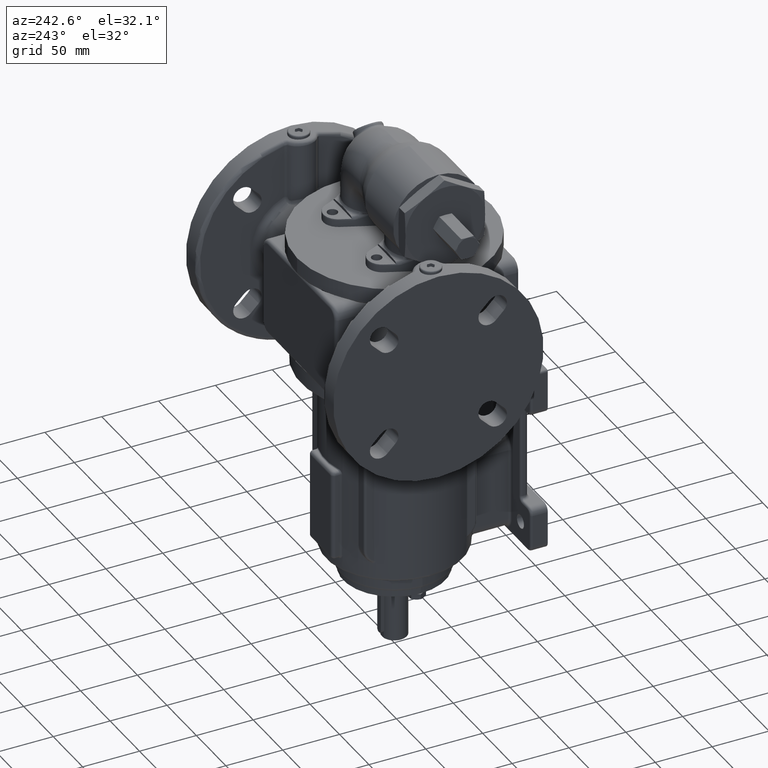
[diagram: clean part render]
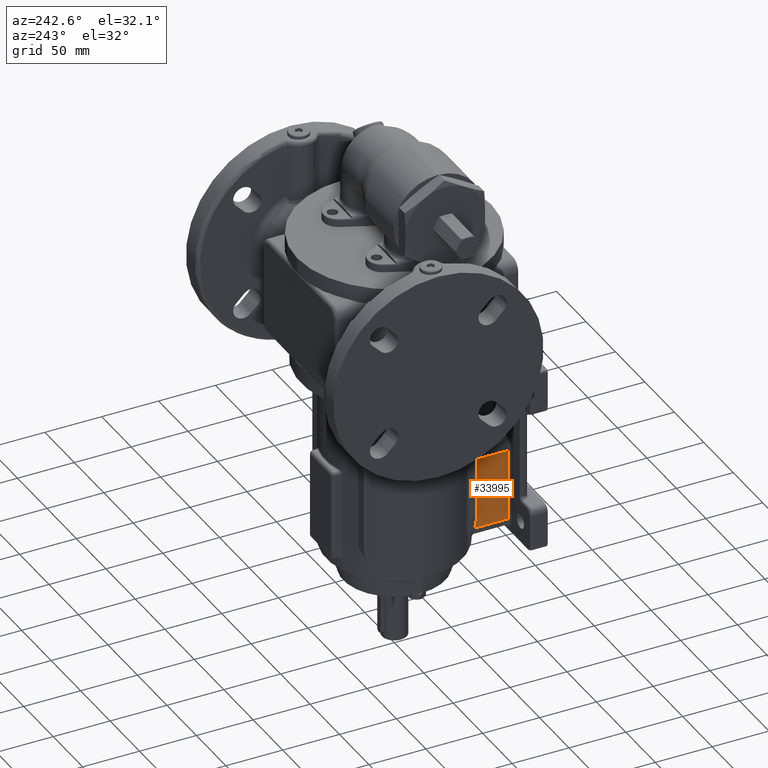
[diagram: same view with one face highlighted and labeled with its STEP entity id]
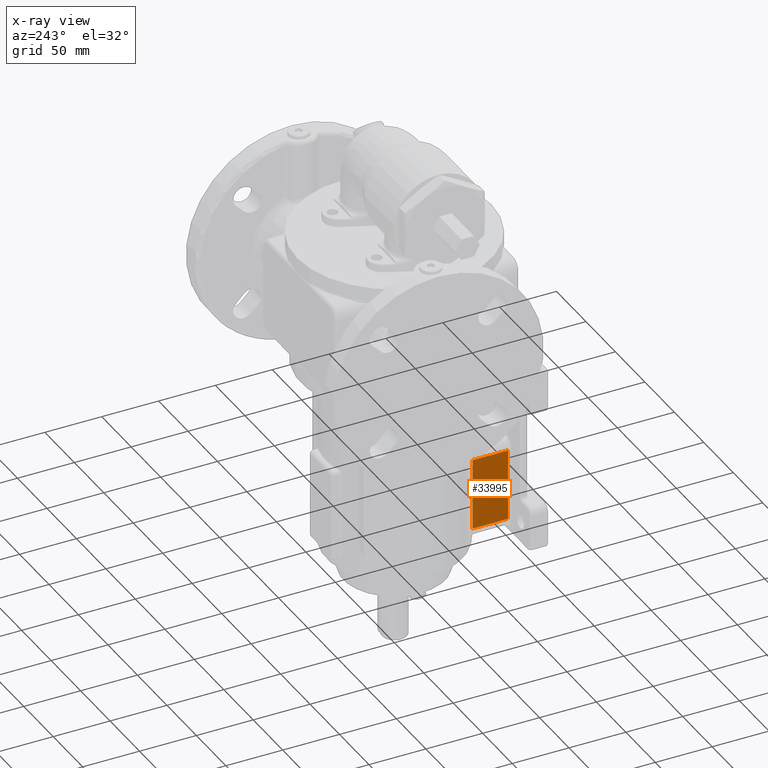
[diagram: x-ray of the same camera — body ghosted, the highlighted face saturated]
A machine part, auxiliary view. The second image highlights one B-rep face of the part: STEP entity #33995.
The next image is the same camera in x-ray: the body ghosted, the highlighted face saturated — about 0% of this face is hidden behind the body in this view.
In plain terms, the highlighted planar face has unit normal (-1, 0, 0).
Its self-contained STEP definition (entity closure, byte-faithful):
#6968=DIRECTION('',(0.E0,0.E0,1.E0));
#6969=VECTOR('',#6968,6.299999999292E1);
#6970=CARTESIAN_POINT('',(-3.3E1,-8.3E1,-1.634999999958E2));
#6971=LINE('',#6970,#6969);
#6972=DIRECTION('',(0.E0,-1.E0,-1.362492117223E-11));
#6973=VECTOR('',#6972,3.121921205698E1);
#6974=CARTESIAN_POINT('',(-3.3E1,-5.178078794302E1,-1.634999999954E2));
#6975=LINE('',#6974,#6973);
#6976=DIRECTION('',(0.E0,0.E0,-1.E0));
#6977=VECTOR('',#6976,6.299999999061E1);
#6978=CARTESIAN_POINT('',(-3.3E1,-5.178078794302E1,-1.005000000048E2));
#6979=LINE('',#6978,#6977);
#6980=DIRECTION('',(0.E0,-1.E0,6.035122690691E-11));
#6981=VECTOR('',#6980,3.121921205698E1);
#6982=CARTESIAN_POINT('',(-3.3E1,-5.178078794302E1,-1.005000000048E2));
#6983=LINE('',#6982,#6981);
#7000=CARTESIAN_POINT('',(-3.3E1,-5.178078794302E1,-1.634999999954E2));
#12797=VERTEX_POINT('',#7000);
#12800=CARTESIAN_POINT('',(-3.3E1,-5.178078794302E1,-1.005000000048E2));
#12801=VERTEX_POINT('',#12800);
#12913=CARTESIAN_POINT('',(-3.3E1,-8.3E1,-1.005E2));
#12914=VERTEX_POINT('',#12913);
#12917=CARTESIAN_POINT('',(-3.3E1,-8.3E1,-1.634999999958E2));
#12918=VERTEX_POINT('',#12917);
#33982=CARTESIAN_POINT('',(-3.3E1,-8.5E1,-1.735E2));
#33983=DIRECTION('',(-1.E0,0.E0,0.E0));
#33984=DIRECTION('',(0.E0,0.E0,1.E0));
#33985=AXIS2_PLACEMENT_3D('',#33982,#33983,#33984);
#33986=PLANE('',#33985);
#33987=ORIENTED_EDGE('',*,*,#31586,.F.);
#33989=ORIENTED_EDGE('',*,*,#33988,.F.);
#33991=ORIENTED_EDGE('',*,*,#33990,.F.);
#33992=ORIENTED_EDGE('',*,*,#33974,.T.);
#33993=EDGE_LOOP('',(#33987,#33989,#33991,#33992));
#33994=FACE_OUTER_BOUND('',#33993,.F.);
#33995=ADVANCED_FACE('',(#33994),#33986,.T.);
#31586=EDGE_CURVE('',#12918,#12914,#6971,.T.);
#33974=EDGE_CURVE('',#12801,#12914,#6983,.T.);
#33988=EDGE_CURVE('',#12797,#12918,#6975,.T.);
#33990=EDGE_CURVE('',#12801,#12797,#6979,.T.);